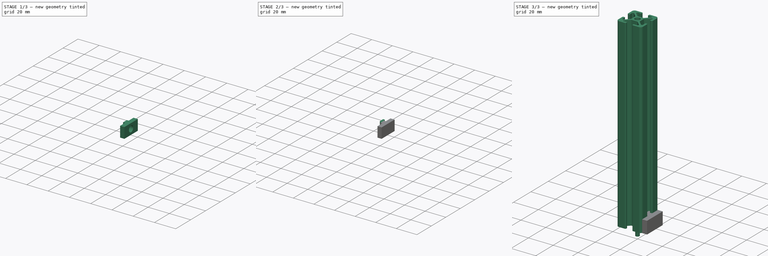
[diagram: build sequence overview — one tinted view per stage of 3, left to right]
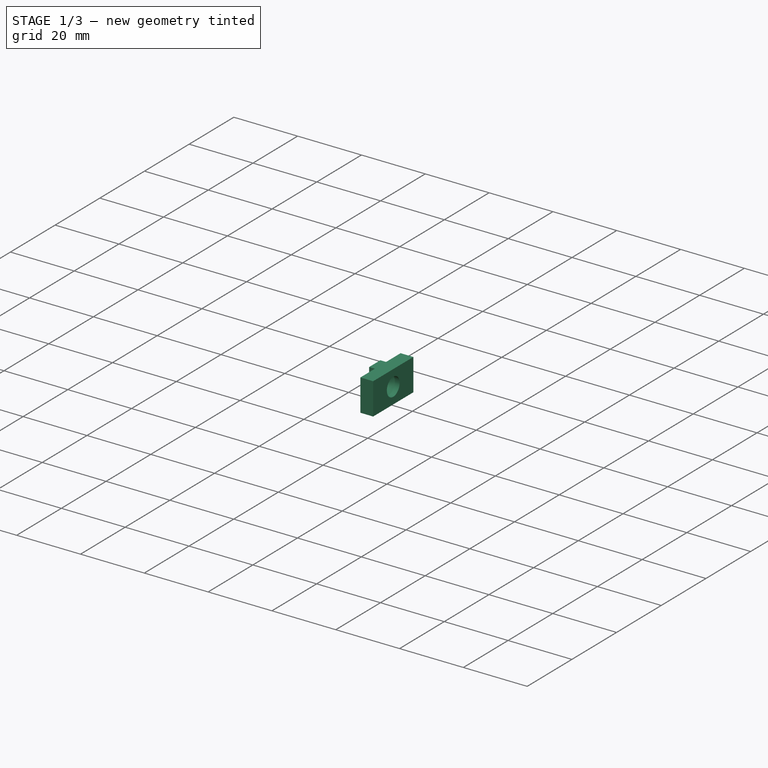
[diagram: stage 1 of 3 — iso view after this stage's code; geometry added in this stage tinted green]
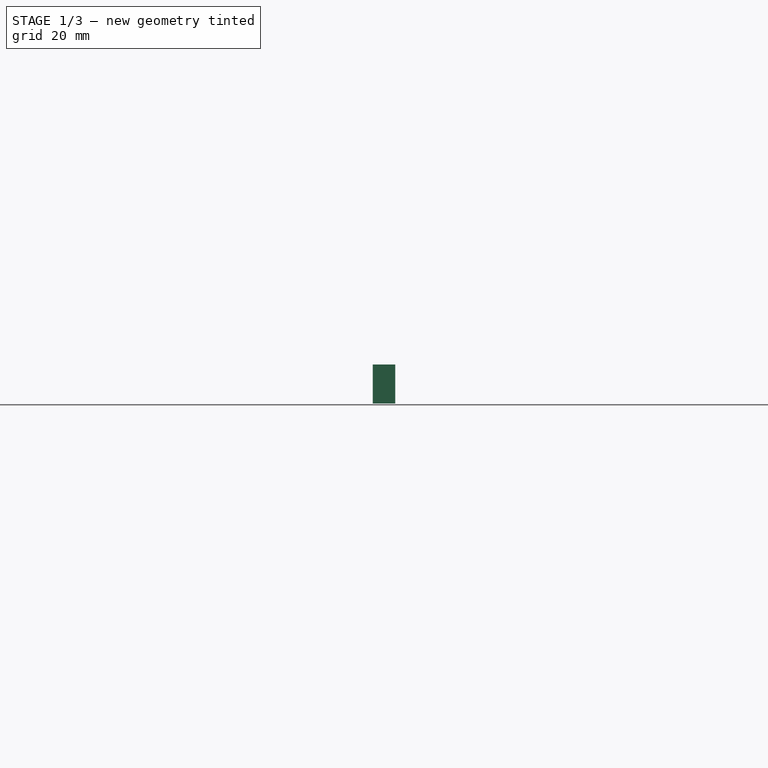
[diagram: stage 1 of 3 — front view after this stage's code; geometry added in this stage tinted green]
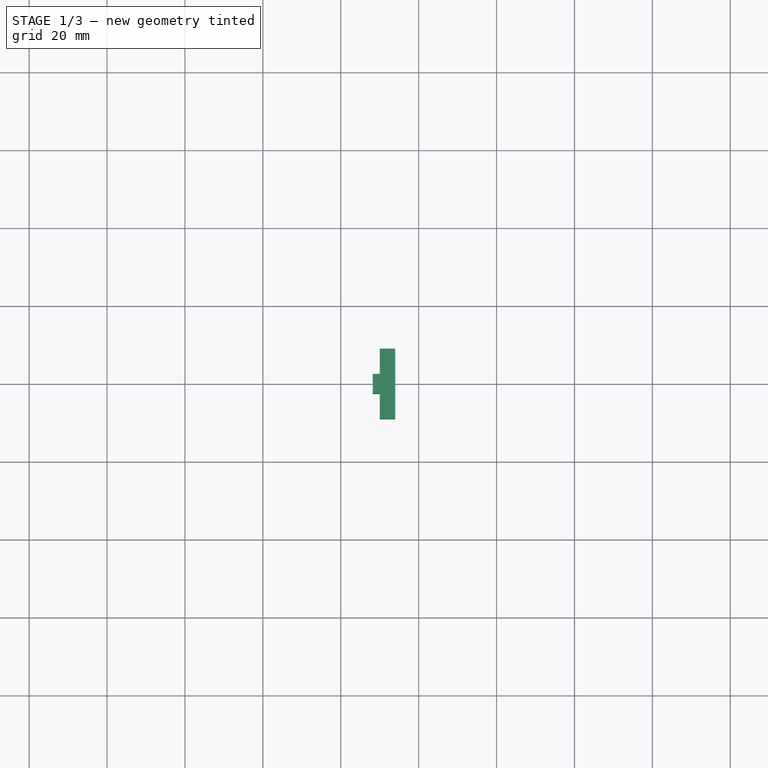
[diagram: stage 1 of 3 — top view after this stage's code; geometry added in this stage tinted green]
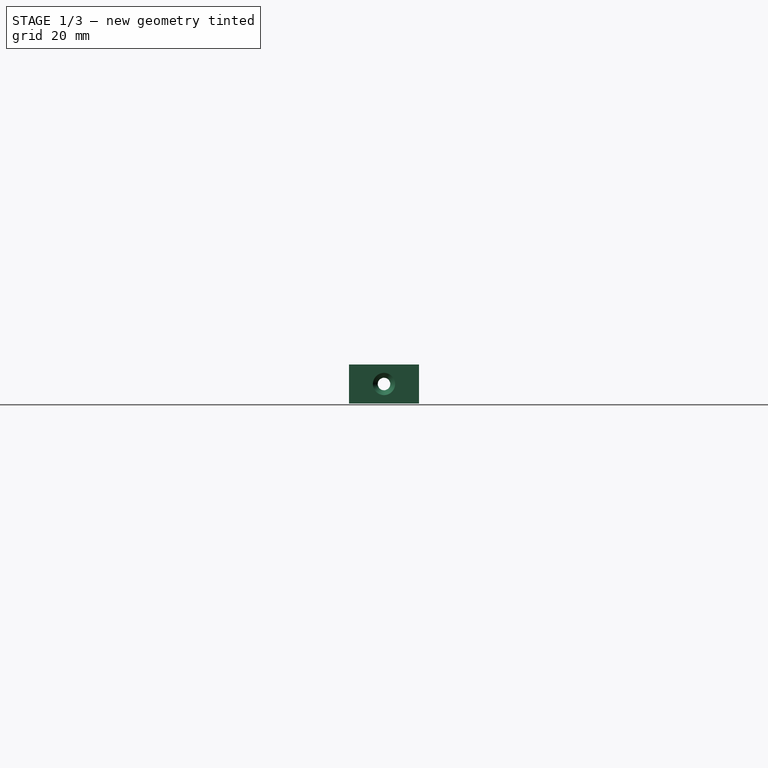
[diagram: stage 1 of 3 — right view after this stage's code; geometry added in this stage tinted green]
FCSTD DOCUMENT  (FreeCAD 0.18R)
Label: ISP5-Clamps
License: CreativeCommons Attribution
LicenseURL: http://creativecommons.org/licenses/by/4.0/
objects: Sketcher::SketchObject×5, PartDesign::Body×4, PartDesign::Pad×3, PartDesign::Revolution×1, PartDesign::Groove×1
note: 19 computed .brp shape members not serialized (recipe doc carries the construction recipe); baked Part::Feature solids carry a one-line shape summary decoded from their .brp

FEATURE [PartDesign::Body] Body008  label="ClampFix"
  Group = -> [Sketch012,Pad006]
  Origin = -> Origin017
  Tip = -> Pad006
FEATURE [Sketcher::SketchObject] Sketch013  label="ScrewFix-Profile"
  MapMode = 5
  Support = -> [XY_Plane019]
  sketch-geometry (8):
    g0: LineSegment StartX=14 StartY=9 StartZ=0 EndX=14 EndY=-9 EndZ=0
    g1: LineSegment StartX=14 StartY=-9 StartZ=0 EndX=10 EndY=-9 EndZ=0
    g2: LineSegment StartX=10 StartY=-9 StartZ=0 EndX=10 EndY=-2.5 EndZ=0
    g3: LineSegment StartX=10 StartY=-2.5 StartZ=0 EndX=8.2 EndY=-2.5 EndZ=0
    g4: LineSegment StartX=8.2 StartY=-2.5 StartZ=0 EndX=8.2 EndY=2.5 EndZ=0
    g5: LineSegment StartX=8.2 StartY=2.5 StartZ=0 EndX=10 EndY=2.5 EndZ=0
    g6: LineSegment StartX=10 StartY=2.5 StartZ=0 EndX=10 EndY=9 EndZ=0
    g7: LineSegment StartX=10 StartY=9 StartZ=0 EndX=14 EndY=9 EndZ=0
  constraints (22):
    c: Coincident(g0,g1)
    c: Coincident(g1,g2)
    c: Coincident(g2,g3)
    c: Coincident(g3,g4)
    c: Coincident(g5,g6)
    c: Coincident(g0,g7)
    c: Coincident(g6,g7)
    c: Horizontal(g5)
    c: Horizontal(g3)
    c: Horizontal(g7)
    c: Horizontal(g1)
    c: Vertical(g2)
    c: Vertical(g0)
    c: Vertical(g6)
    c: DistanceY(g4,g4) = 5
    c: DistanceX(g-1,g6) = 10
    c: DistanceX(g7,g7) = 4
    c: Symmetric(g1,g6,g-1)
    c: DistanceY(g0,g0) = 18
    c: Coincident(g4,g5)
    c: Symmetric(g3,g4,g-1)
    c: DistanceX(g5,g5) = 1.8
FEATURE [PartDesign::Pad] Pad007
  Length = 10
  Length2 = 100
  Profile = -> Sketch013
  Type = 0
FEATURE [Sketcher::SketchObject] Sketch014  label="DIN912-M3x8-3DP-Hole-Profile"
  Placement = pos=(12,0,5) rot=(0,0,-1;1.5708rad)
  Support = -> [Pad007]
  sketch-geometry (6):
    g0: LineSegment StartX=0 StartY=3 StartZ=0 EndX=2.85 EndY=3 EndZ=0
    g1: LineSegment StartX=2.85 StartY=3 StartZ=0 EndX=2.85 EndY=0.5 EndZ=0
    g2: LineSegment StartX=2.85 StartY=0.5 StartZ=0 EndX=1.6 EndY=-0.75 EndZ=0
    g3: LineSegment StartX=1.6 StartY=-0.75 StartZ=0 EndX=1.6 EndY=-10 EndZ=0
    g4: LineSegment StartX=1.6 StartY=-10 StartZ=0 EndX=0 EndY=-10 EndZ=0
    g5: LineSegment StartX=0 StartY=-10 StartZ=0 EndX=0 EndY=3 EndZ=0
  constraints (18):
    c: Coincident(g0,g1)
    c: Coincident(g1,g2)
    c: Coincident(g2,g3)
    c: Coincident(g3,g4)
    c: Coincident(g4,g5)
    c: Coincident(g0,g5)
    c: Vertical(g5)
    c: Vertical(g1)
    c: Vertical(g3)
    c: Angle(g-1,g2) = 0.785398
    c: Horizontal(g4)
    c: DistanceX(g4,g4) = 1.6
    c: PointOnObject(g-1,g5)
    c: DistanceY(g-1,g0) = 3
    c: Horizontal(g0)
    c: DistanceY(g1,g1) = 2.5
    c: DistanceX(g0,g0) = 2.85
    c: DistanceY(g4,g-1) = 10
FEATURE [PartDesign::Groove] Groove
  Angle = 360
  Axis = (1,2e-16,0)
  Base = (12,0,5)
  BaseFeature = -> Pad007
  Profile = -> Sketch014
  ReferenceAxis = -> Sketch014 [V_Axis]
FEATURE [PartDesign::Body] Body010  label="ScrewFix"
  Group = -> [Sketch013,Pad007,Sketch014,Groove]
  Origin = -> Origin019
  Tip = -> Groove
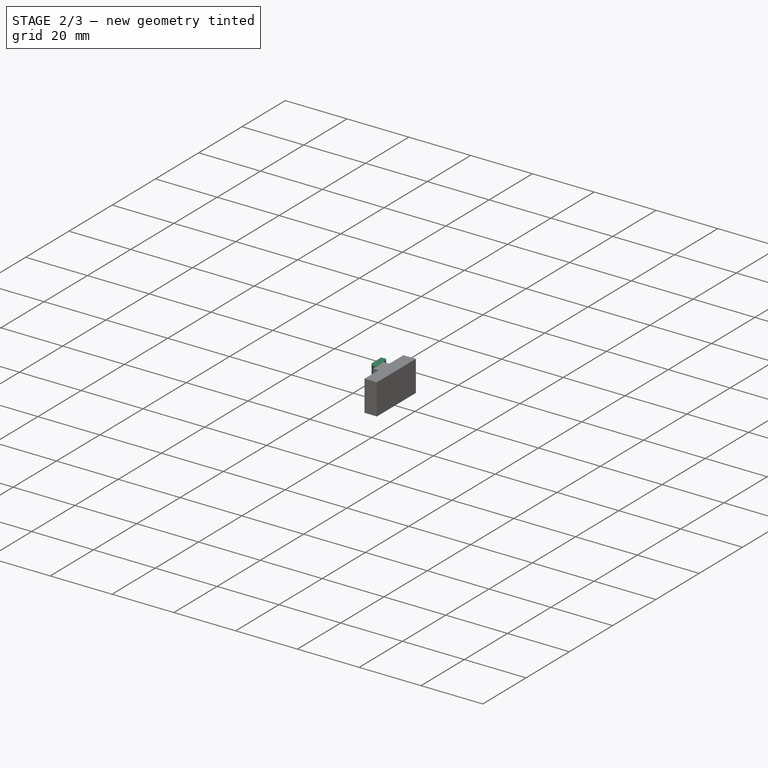
[diagram: stage 2 of 3 — iso view after this stage's code; geometry added in this stage tinted green]
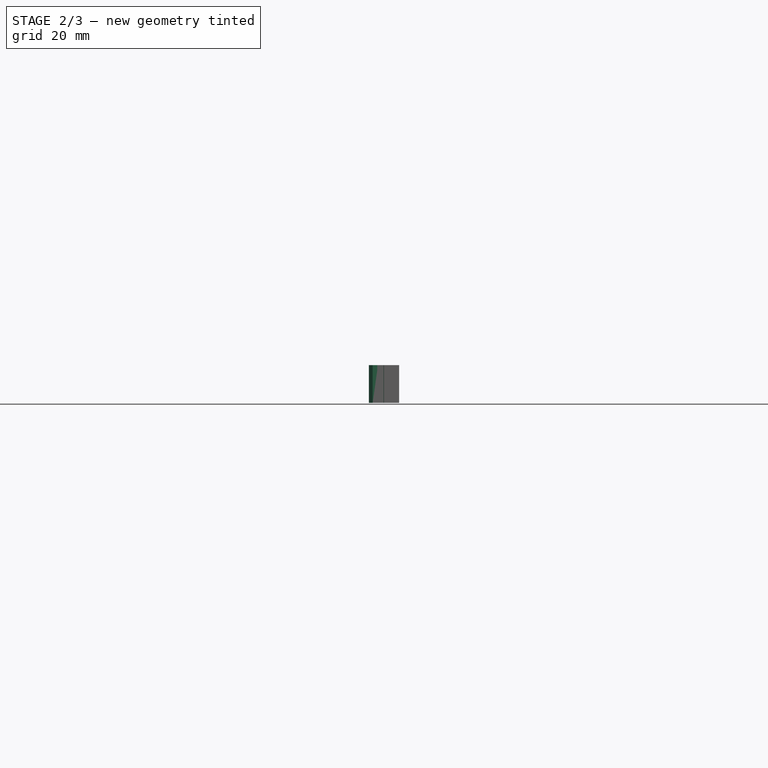
[diagram: stage 2 of 3 — front view after this stage's code; geometry added in this stage tinted green]
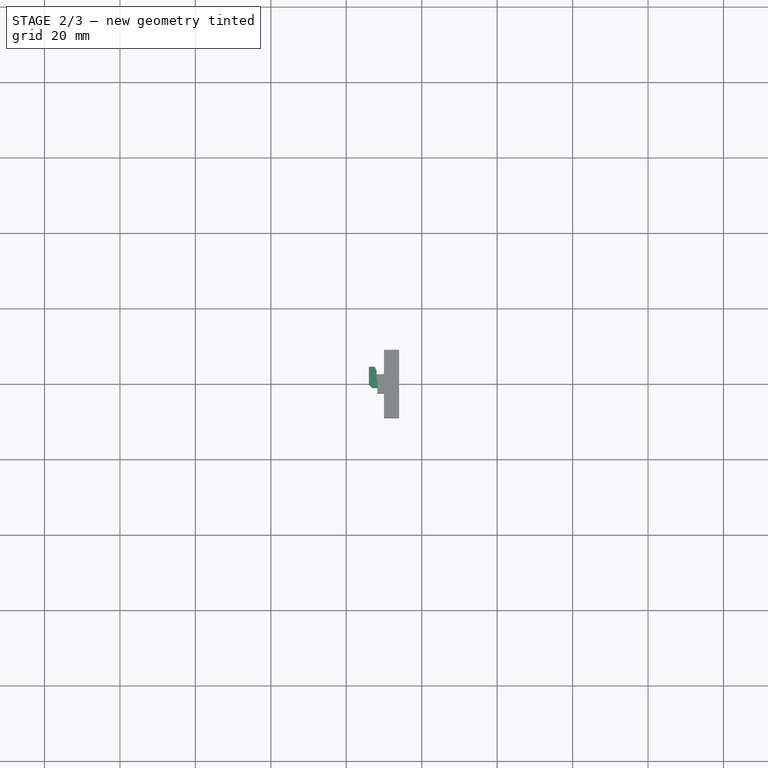
[diagram: stage 2 of 3 — top view after this stage's code; geometry added in this stage tinted green]
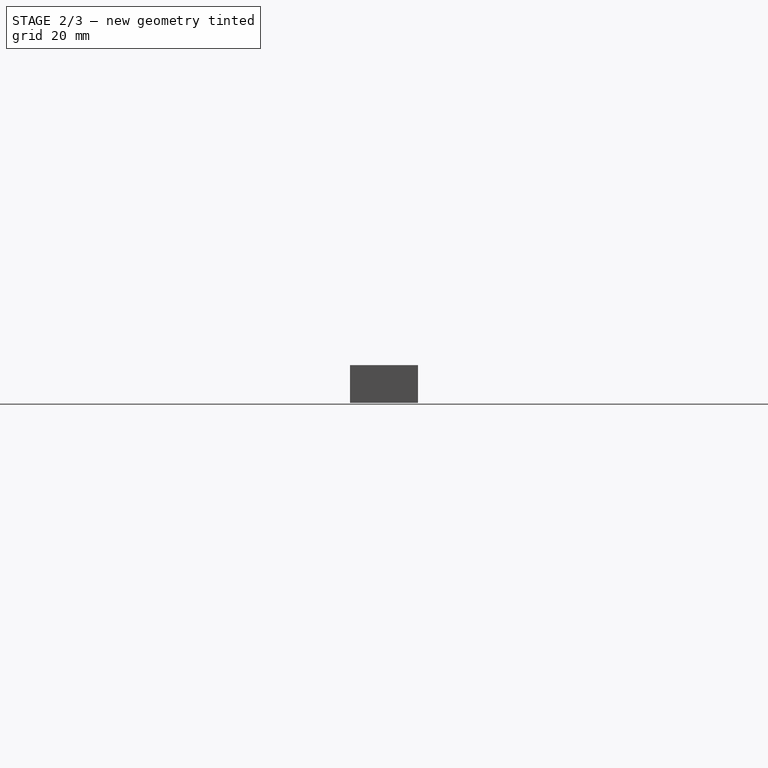
[diagram: stage 2 of 3 — right view after this stage's code; geometry added in this stage tinted green]
FEATURE [PartDesign::Body] Body  label="ISP5-L20"
  Group = -> [CopySketch029,Pad]
  Origin = -> Origin
  Tip = -> Pad
FEATURE [Sketcher::SketchObject] Sketch012  label="ClampFix-Profile"
  MapMode = 5
  Support = -> [XY_Plane017]
  sketch-geometry (14):
    g0: LineSegment StartX=14 StartY=9 StartZ=0 EndX=14 EndY=-9 EndZ=0
    g1: LineSegment StartX=14 StartY=-9 StartZ=0 EndX=10 EndY=-9 EndZ=0
    g2: LineSegment StartX=10 StartY=-9 StartZ=0 EndX=10 EndY=-2.6 EndZ=0
    g3: LineSegment StartX=8.4 StartY=-1 StartZ=0 EndX=7 EndY=-1 EndZ=0
    g4: LineSegment StartX=6 StartY=4e-16 StartZ=0 EndX=6 EndY=4.5 EndZ=0
    g5: LineSegment StartX=6 StartY=4.5 StartZ=0 EndX=7.53369 EndY=4.5 EndZ=0
    g6: LineSegment StartX=8 StartY=3.5 StartZ=0 EndX=8 EndY=2.5 EndZ=0
    g7: LineSegment StartX=10 StartY=2.7 StartZ=0 EndX=10 EndY=9 EndZ=0
    g8: LineSegment StartX=10 StartY=9 StartZ=0 EndX=14 EndY=9 EndZ=0
    g9: LineSegment StartX=7.53369 StartY=4.5 StartZ=0 EndX=8 EndY=3.5 EndZ=0
    g10: LineSegment StartX=8.4 StartY=-1 StartZ=0 EndX=10 EndY=-2.6 EndZ=0
    g11: LineSegment StartX=6 StartY=4e-16 StartZ=0 EndX=7 EndY=-1 EndZ=0
    g12: LineSegment StartX=8 StartY=2.5 StartZ=0 EndX=9.65 EndY=2.5 EndZ=0
    g13: LineSegment StartX=9.65 StartY=2.5 StartZ=0 EndX=10 EndY=2.7 EndZ=0
  constraints (41):
    c: Coincident(g0,g1)
    c: Coincident(g1,g2)
    c: Coincident(g4,g5)
    c: Coincident(g0,g8)
    c: Coincident(g7,g8)
    c: Horizontal(g3)
    c: Horizontal(g5)
    c: Horizontal(g8)
    c: Horizontal(g1)
    c: Vertical(g2)
    c: Vertical(g0)
    c: Vertical(g7)
    c: Vertical(g6)
    c: Vertical(g4)
    c: DistanceX(g6,g7) = 2
    c: Coincident(g5,g9)
    c: Coincident(g9,g6)
    c: DistanceX(g-1,g7) = 10
    c: DistanceY(g6,g6) = 1
    c: DistanceY(g6,g5) = 1
    c: DistanceX(g8,g8) = 4
    c: Symmetric(g1,g7,g-1)
    c: DistanceY(g0,g0) = 18
    c: DistanceX(g4,g6) = 2
    c: Coincident(g2,g10)
    c: Coincident(g3,g10)
    c: Coincident(g3,g11)
    c: Coincident(g4,g11)
    c: Angle(g9,g-1) = 1.13446
    c: Angle(g-1,g10) = 2.35619
    c: Parallel(g11,g10)
    c: DistanceY(g2,g-1) = 2.6
    c: DistanceY(g3,g-1) = 1
    c: DistanceX(g4,g3) = 1
    c: Coincident(g7,g13)
    c: Coincident(g12,g13)
    c: Coincident(g6,g12)
    c: DistanceY(g7) = 2.7
    c: Horizontal(g12)
    c: DistanceY(g-1,g12) = 2.5
    c: DistanceX(g12,g7) = 0.35
FEATURE [PartDesign::Pad] Pad006
  Length = 10
  Length2 = 100
  Profile = -> Sketch012
  Type = 0
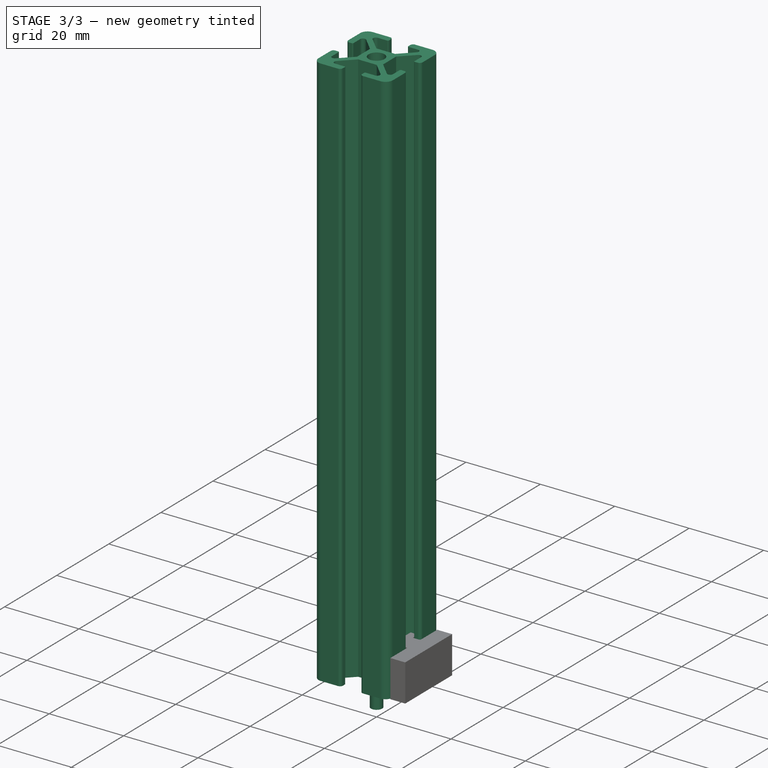
[diagram: stage 3 of 3 — iso view after this stage's code; geometry added in this stage tinted green]
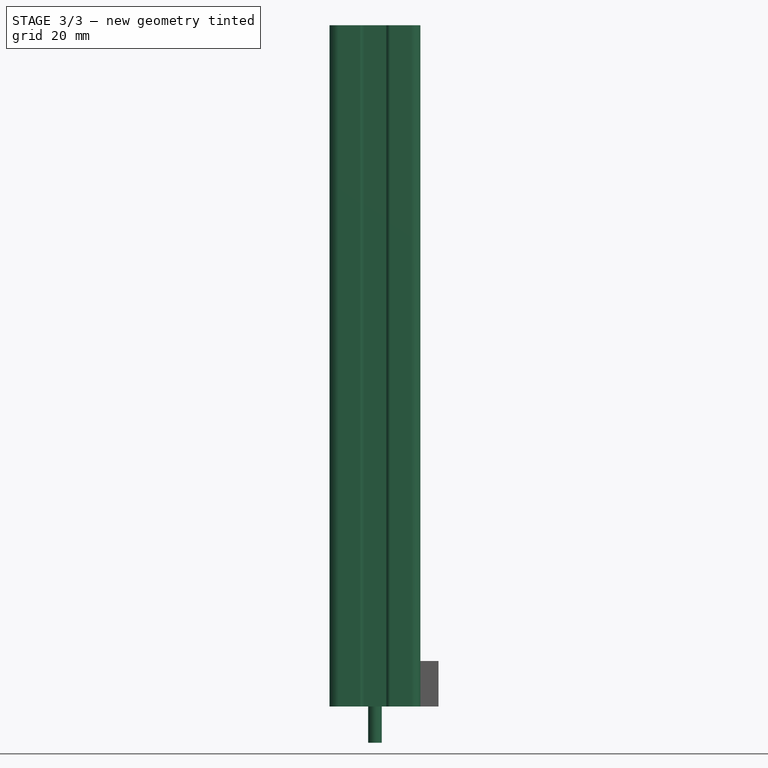
[diagram: stage 3 of 3 — front view after this stage's code; geometry added in this stage tinted green]
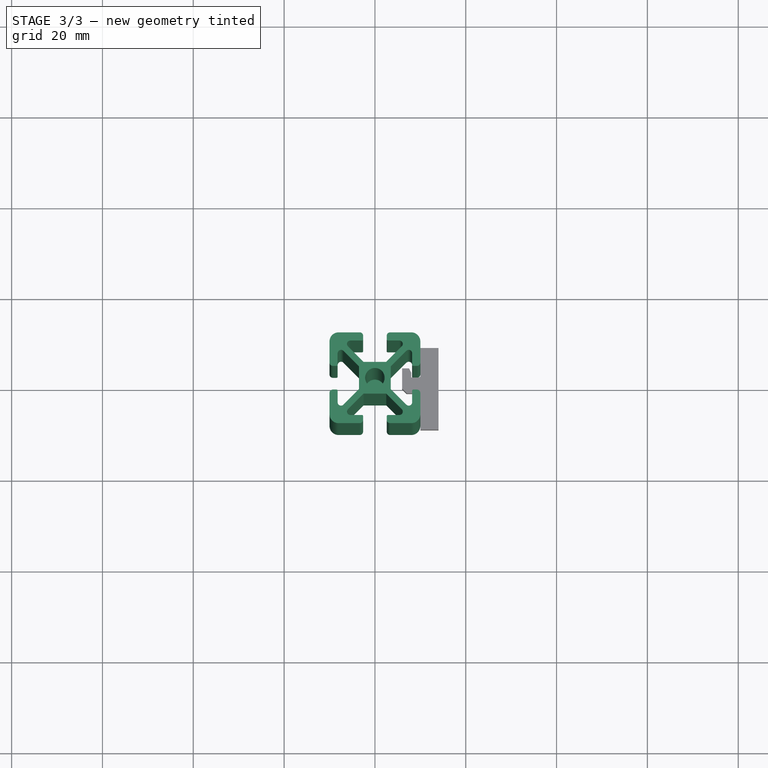
[diagram: stage 3 of 3 — top view after this stage's code; geometry added in this stage tinted green]
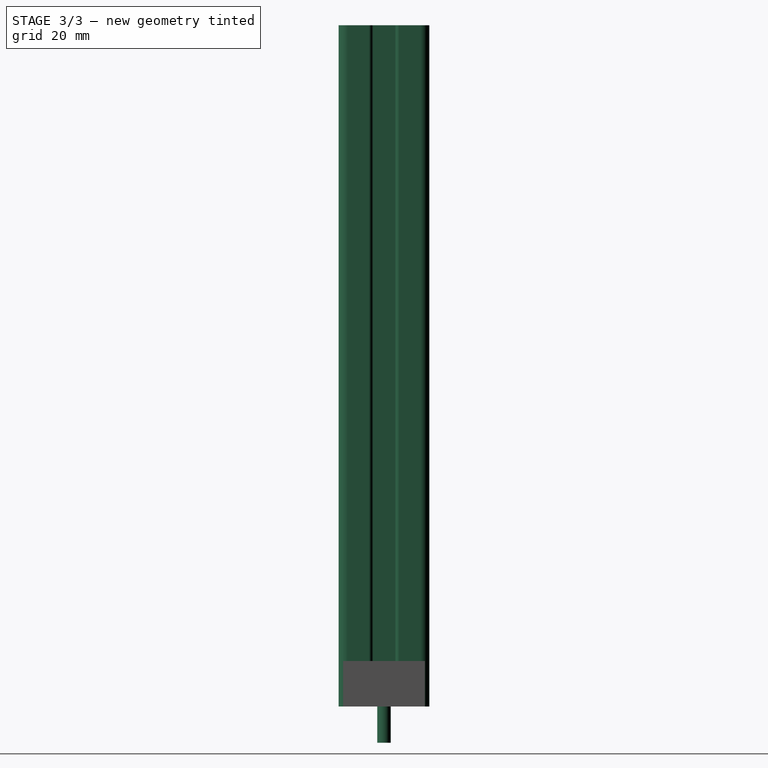
[diagram: stage 3 of 3 — right view after this stage's code; geometry added in this stage tinted green]
FEATURE [Sketcher::SketchObject] Sketch011  label="M3x8 Profile"
  MapMode = 5
  Placement = pos=(0,0,0) rot=(1,0,0;1.5708rad)
  Support = -> [XZ_Plane019]
  sketch-geometry (6):
    g0: LineSegment StartX=0 StartY=3 StartZ=0 EndX=0 EndY=-8 EndZ=0
    g1: LineSegment StartX=0 StartY=-8 StartZ=0 EndX=1.5 EndY=-8 EndZ=0
    g2: LineSegment StartX=1.5 StartY=-8 StartZ=0 EndX=1.5 EndY=0 EndZ=0
    g3: LineSegment StartX=1.5 StartY=0 StartZ=0 EndX=2.75 EndY=0 EndZ=0
    g4: LineSegment StartX=2.75 StartY=0 StartZ=0 EndX=2.75 EndY=3 EndZ=0
    g5: LineSegment StartX=2.75 StartY=3 StartZ=0 EndX=0 EndY=3 EndZ=0
  constraints (18):
    c: Coincident(g0,g1)
    c: Coincident(g1,g2)
    c: Coincident(g2,g3)
    c: Coincident(g3,g4)
    c: Coincident(g4,g5)
    c: Coincident(g0,g5)
    c: Horizontal(g5)
    c: Vertical(g0)
    c: PointOnObject(g0,g-2)
    c: Horizontal(g3)
    c: Vertical(g4)
    c: Vertical(g2)
    c: Horizontal(g1)
    c: DistanceY(g2,g2) = 8
    c: PointOnObject(g2,g-1)
    c: DistanceY(g4,g4) = 3
    c: DistanceX(g5,g5) = 2.75
    c: DistanceX(g1,g1) = 1.5
FEATURE [PartDesign::Revolution] Revolution002
  Angle = 360
  Axis = (0,-2e-16,1)
  Base = (0,0,0)
  Placement = pos=(0,0,0) rot=(1,0,0;1.5708rad)
  Profile = -> Sketch011
  ReferenceAxis = -> Sketch011 [V_Axis]
  Reversed = true
FEATURE [PartDesign::Body] Body005  label="DIN912-M3x8"
  Group = -> [Sketch011,Revolution002]
  Origin = -> Origin012
  Placement = pos=(12,0,5) rot=(0.57735,-0.57735,0.57735;4.18879rad)
  Tip = -> Revolution002
FEATURE [Sketcher::SketchObject] CopySketch029  label="ISP5-L20-Profile"
  MapMode = 5
  sketch-geometry (70):
    g0: LineSegment StartX=-2.5 StartY=3.5 StartZ=0 EndX=-5.91967 EndY=6.91967 EndZ=0
    g1: LineSegment StartX=-5.38934 StartY=8.2 StartZ=0 EndX=-2.85 EndY=8.2 EndZ=0
    g2: LineSegment StartX=-3.35 StartY=10 StartZ=0 EndX=-8 EndY=10 EndZ=0
    g3: LineSegment StartX=-10 StartY=8 StartZ=0 EndX=-10 EndY=3.35 EndZ=0
    g4: LineSegment StartX=-9.25 StartY=2.6 StartZ=0 EndX=-8.45 EndY=2.6 EndZ=0
    g5: LineSegment StartX=-8.2 StartY=2.85 StartZ=0 EndX=-8.2 EndY=5.38934 EndZ=0
    g6: LineSegment StartX=-6.91967 StartY=5.91967 StartZ=0 EndX=-3.5 EndY=2.5 EndZ=0
    g7: LineSegment StartX=-2.6 StartY=9.25 StartZ=0 EndX=-2.6 EndY=8.45 EndZ=0
    g8: ArcOfCircle CenterX=-8 CenterY=8 CenterZ=0 NormalX=0 NormalY=0 NormalZ=1 AngleXU=0 Radius=2 StartAngle=1.5708 EndAngle=3.14159
    g9: ArcOfCircle CenterX=-3.35 CenterY=9.25 CenterZ=0 NormalX=0 NormalY=0 NormalZ=1 AngleXU=0 Radius=0.75 StartAngle=6e-16 EndAngle=1.5708
    g10: ArcOfCircle CenterX=-9.25 CenterY=3.35 CenterZ=0 NormalX=0 NormalY=0 NormalZ=1 AngleXU=0 Radius=0.75 StartAngle=3.14159 EndAngle=4.71239
    g11: ArcOfCircle CenterX=-5.38934 CenterY=7.45 CenterZ=0 NormalX=0 NormalY=0 NormalZ=1 AngleXU=0 Radius=0.75 StartAngle=1.5708 EndAngle=3.92699
    g12: ArcOfCircle CenterX=-7.45 CenterY=5.38934 CenterZ=0 NormalX=0 NormalY=0 NormalZ=1 AngleXU=0 Radius=0.75 StartAngle=0.785398 EndAngle=3.14159
    g13: LineSegment [constr] StartX=-5.38934 StartY=7.45 StartZ=0 EndX=-7.45 EndY=5.38934 EndZ=0
    g14: ArcOfCircle CenterX=-2.85 CenterY=8.45 CenterZ=0 NormalX=0 NormalY=0 NormalZ=1 AngleXU=0 Radius=0.25 StartAngle=4.71239 EndAngle=6.28319
    g15: Circle CenterX=0 CenterY=0 CenterZ=0 NormalX=0 NormalY=0 NormalZ=1 AngleXU=0 Radius=2.15
    g16: LineSegment StartX=2.5 StartY=3.5 StartZ=0 EndX=5.91967 EndY=6.91967 EndZ=0
    g17: LineSegment StartX=3.5 StartY=-2.5 StartZ=0 EndX=6.91967 EndY=-5.91967 EndZ=0
    g18: LineSegment StartX=2.5 StartY=-3.5 StartZ=0 EndX=5.91967 EndY=-6.91967 EndZ=0
    g19: LineSegment StartX=-2.5 StartY=-3.5 StartZ=0 EndX=-5.91967 EndY=-6.91967 EndZ=0
    g20: LineSegment StartX=-3.5 StartY=-2.5 StartZ=0 EndX=-6.91967 EndY=-5.91967 EndZ=0
    g21: LineSegment StartX=3.5 StartY=2.5 StartZ=0 EndX=6.91967 EndY=5.91967 EndZ=0
    g22: ArcOfCircle CenterX=-7.45 CenterY=-5.38934 CenterZ=0 NormalX=0 NormalY=0 NormalZ=1 AngleXU=0 Radius=0.75 StartAngle=3.14159 EndAngle=5.49779
    g23: ArcOfCircle CenterX=-5.38934 CenterY=-7.45 CenterZ=0 NormalX=0 NormalY=0 NormalZ=1 AngleXU=0 Radius=0.75 StartAngle=2.35619 EndAngle=4.71239
    g24: ArcOfCircle CenterX=5.38934 CenterY=-7.45 CenterZ=0 NormalX=0 NormalY=0 NormalZ=1 AngleXU=0 Radius=0.75 StartAngle=4.71239 EndAngle=7.06858
    g25: ArcOfCircle CenterX=7.45 CenterY=-5.38934 CenterZ=0 NormalX=0 NormalY=0 NormalZ=1 AngleXU=0 Radius=0.75 StartAngle=3.92699 EndAngle=6.28319
    g26: ArcOfCircle CenterX=5.38934 CenterY=7.45 CenterZ=0 NormalX=0 NormalY=0 NormalZ=1 AngleXU=0 Radius=0.75 StartAngle=5.49779 EndAngle=7.85398
    g27: ArcOfCircle CenterX=7.45 CenterY=5.38934 CenterZ=0 NormalX=0 NormalY=0 NormalZ=1 AngleXU=0 Radius=0.75 StartAngle=6e-16 EndAngle=2.35619
    g28: LineSegment StartX=-5.38934 StartY=-8.2 StartZ=0 EndX=-2.85 EndY=-8.2 EndZ=0
    g29: LineSegment StartX=2.85 StartY=-8.2 StartZ=0 EndX=5.38934 EndY=-8.2 EndZ=0
    g30: LineSegment StartX=8.2 StartY=-5.38934 StartZ=0 EndX=8.2 EndY=-2.85 EndZ=0
    g31: LineSegment StartX=8.2 StartY=5.38934 StartZ=0 EndX=8.2 EndY=2.85 EndZ=0
    g32: LineSegment StartX=5.38934 StartY=8.2 StartZ=0 EndX=2.85 EndY=8.2 EndZ=0
    g33: LineSegment StartX=-8.2 StartY=-5.38934 StartZ=0 EndX=-8.2 EndY=-2.85 EndZ=0
    g34: ArcOfCircle CenterX=-8.45 CenterY=-2.85 CenterZ=0 NormalX=0 NormalY=0 NormalZ=1 AngleXU=0 Radius=0.25 StartAngle=7e-16 EndAngle=1.5708
    g35: ArcOfCircle CenterX=-2.85 CenterY=-8.45 CenterZ=0 NormalX=0 NormalY=0 NormalZ=1 AngleXU=0 Radius=0.25 StartAngle=1e-15 EndAngle=1.5708
    g36: ArcOfCircle CenterX=2.85 CenterY=-8.45 CenterZ=0 NormalX=0 NormalY=0 NormalZ=1 AngleXU=0 Radius=0.25 StartAngle=1.5708 EndAngle=3.14159
    g37: ArcOfCircle CenterX=8.45 CenterY=-2.85 CenterZ=0 NormalX=0 NormalY=0 NormalZ=1 AngleXU=0 Radius=0.25 StartAngle=1.5708 EndAngle=3.14159
    g38: LineSegment StartX=2.6 StartY=9.25 StartZ=0 EndX=2.6 EndY=8.45 EndZ=0
    g39: LineSegment StartX=8.45 StartY=2.6 StartZ=0 EndX=9.25 EndY=2.6 EndZ=0
    g40: LineSegment StartX=8.45 StartY=-2.6 StartZ=0 EndX=9.25 EndY=-2.6 EndZ=0
    g41: LineSegment StartX=-8.45 StartY=-2.6 StartZ=0 EndX=-9.25 EndY=-2.6 EndZ=0
    g42: LineSegment StartX=-2.6 StartY=-8.45 StartZ=0 EndX=-2.6 EndY=-9.25 EndZ=0
    g43: LineSegment StartX=2.6 StartY=-8.45 StartZ=0 EndX=2.6 EndY=-9.25 EndZ=0
    g44: ArcOfCircle CenterX=8.45 CenterY=2.85 CenterZ=0 NormalX=0 NormalY=0 NormalZ=1 AngleXU=0 Radius=0.25 StartAngle=3.14159 EndAngle=4.71239
    g45: LineSegment StartX=3.35 StartY=10 StartZ=0 EndX=8 EndY=10 EndZ=0
    g46: ArcOfCircle CenterX=8 CenterY=8 CenterZ=0 NormalX=0 NormalY=0 NormalZ=1 AngleXU=0 Radius=2 StartAngle=2e-16 EndAngle=1.5708
    g47: LineSegment StartX=10 StartY=8 StartZ=0 EndX=10 EndY=3.35 EndZ=0
    g48: ArcOfCircle CenterX=9.25 CenterY=3.35 CenterZ=0 NormalX=0 NormalY=0 NormalZ=1 AngleXU=0 Radius=0.75 StartAngle=4.71239 EndAngle=6.28319
    g49: LineSegment StartX=3.35 StartY=-10 StartZ=0 EndX=8 EndY=-10 EndZ=0
    g50: ArcOfCircle CenterX=8 CenterY=-8 CenterZ=0 NormalX=0 NormalY=0 NormalZ=1 AngleXU=0 Radius=2 StartAngle=4.71239 EndAngle=6.28319
    g51: LineSegment StartX=10 StartY=-8 StartZ=0 EndX=10 EndY=-3.35 EndZ=0
    g52: ArcOfCircle CenterX=9.25 CenterY=-3.35 CenterZ=0 NormalX=0 NormalY=0 NormalZ=1 AngleXU=0 Radius=0.75 StartAngle=1e-16 EndAngle=1.5708
    g53: LineSegment StartX=-3.35 StartY=-10 StartZ=0 EndX=-8 EndY=-10 EndZ=0
    g54: LineSegment StartX=-10 StartY=-8 StartZ=0 EndX=-10 EndY=-3.35 EndZ=0
    g55: ArcOfCircle CenterX=-9.25 CenterY=-3.35 CenterZ=0 NormalX=0 NormalY=0 NormalZ=1 AngleXU=0 Radius=0.75 StartAngle=1.5708 EndAngle=3.14159
    g56: ArcOfCircle CenterX=-3.35 CenterY=-9.25 CenterZ=0 NormalX=0 NormalY=0 NormalZ=1 AngleXU=0 Radius=0.75 StartAngle=4.71239 EndAngle=6.28319
    g57: ArcOfCircle CenterX=3.35 CenterY=-9.25 CenterZ=0 NormalX=0 NormalY=0 NormalZ=1 AngleXU=0 Radius=0.75 StartAngle=3.14159 EndAngle=4.71239
    g58: ArcOfCircle CenterX=3.35 CenterY=9.25 CenterZ=0 NormalX=0 NormalY=0 NormalZ=1 AngleXU=0 Radius=0.75 StartAngle=1.5708 EndAngle=3.14159
    g59: ArcOfCircle CenterX=-8 CenterY=-8 CenterZ=0 NormalX=0 NormalY=0 NormalZ=1 AngleXU=0 Radius=2 StartAngle=3.14159 EndAngle=4.71239
    g60: ArcOfCircle CenterX=-8.45 CenterY=2.85 CenterZ=0 NormalX=0 NormalY=0 NormalZ=1 AngleXU=0 Radius=0.25 StartAngle=4.71239 EndAngle=6.28319
    g61: ArcOfCircle CenterX=2.85 CenterY=8.45 CenterZ=0 NormalX=0 NormalY=0 NormalZ=1 AngleXU=0 Radius=0.25 StartAngle=3.14159 EndAngle=4.71239
    g62: LineSegment StartX=0 StartY=3.5 StartZ=0 EndX=2.5 EndY=3.5 EndZ=0
    g63: LineSegment StartX=0 StartY=3.5 StartZ=0 EndX=-2.5 EndY=3.5 EndZ=0
    g64: LineSegment StartX=-3.5 StartY=2.5 StartZ=0 EndX=-3.5 EndY=0 EndZ=0
    g65: LineSegment StartX=-3.5 StartY=0 StartZ=0 EndX=-3.5 EndY=-2.5 EndZ=0
    g66: LineSegment StartX=-2.5 StartY=-3.5 StartZ=0 EndX=0 EndY=-3.5 EndZ=0
    g67: LineSegment StartX=0 StartY=-3.5 StartZ=0 EndX=2.5 EndY=-3.5 EndZ=0
    g68: LineSegment StartX=3.5 StartY=-2.5 StartZ=0 EndX=3.5 EndY=0 EndZ=0
    g69: LineSegment StartX=3.5 StartY=0 StartZ=0 EndX=3.5 EndY=2.5 EndZ=0
  constraints (173):
    c: Vertical(g7)
    c: Horizontal(g1)
    c: Vertical(g5)
    c: Horizontal(g4)
    c: Coincident(g2,g9)
    c: Coincident(g9,g7)
    c: Radius(g9) = 0.75
    c: DistanceY(g1,g2) = 1.8
    c: Coincident(g3,g10)
    c: Coincident(g10,g4)
    c: Radius(g10) = 0.75
    c: Horizontal(g9,g7)
    c: Vertical(g2,g9)
    c: Coincident(g0,g11)
    c: Coincident(g11,g1)
    c: Vertical(g1,g11)
    c: Radius(g11) = 0.75
    c: Coincident(g12,g6)
    c: Coincident(g12,g5)
    c: Equal(g11,g12)
    c: Horizontal(g5,g12)
    c: Coincident(g12,g13)
    c: Coincident(g11,g13)
    c: PointOnObject(g0,g13)
    c: PointOnObject(g6,g13)
    c: Horizontal(g3,g10)
    c: Vertical(g10,g4)
    c: Horizontal(g2)
    c: Vertical(g3)
    c: Parallel(g6,g0)
    c: Tangent(g2,g8) = -1.5708
    c: Tangent(g3,g8) = -1.5708
    c: Radius(g8) = 2
    c: Perpendicular(g13,g6)
    c: Coincident(g7,g14)
    c: Coincident(g1,g14)
    c: Vertical(g14,g1)
    c: Horizontal(g14,g7)
    c: Radius(g14) = 0.25
    c: DistanceX(g3,g5) = 1.8
    c: Coincident(g15,g-1)
    c: Radius(g15) = 2.15
    c: DistanceX(g0,g16) = 5
    c: Symmetric(g16,g0,g-2)
    c: Symmetric(g21,g6,g-2)
    c: Equal(g16,g21)
    c: Parallel(g20,g19)
    c: Parallel(g18,g17)
    c: Symmetric(g6,g20,g-1)
    c: Symmetric(g0,g19,g-1)
    c: Tangent(g16,g26) = -1.5708
    c: Tangent(g21,g27) = 1.5708
    c: Tangent(g17,g25) = -1.5708
    c: Tangent(g18,g24) = 1.5708
    c: Tangent(g19,g23) = -1.5708
    c: Tangent(g20,g22) = 1.5708
    c: Horizontal(g28)
    c: Tangent(g26,g32) = -1.5708
    c: Tangent(g27,g31) = 1.5708
    c: Tangent(g25,g30) = -1.5708
    c: Tangent(g24,g29) = -1.5708
    c: Tangent(g23,g28) = -1.5708
    c: Tangent(g22,g33) = 1.5708
    c: Tangent(g30,g37) = 1.5708
    c: Tangent(g36,g29) = 1.5708
    c: Tangent(g28,g35) = 1.5708
    c: Tangent(g34,g33) = -1.5708
    c: Symmetric(g0,g16,g-2)
    c: Symmetric(g21,g17,g-1)
    c: Symmetric(g18,g19,g-2)
    c: Symmetric(g6,g20,g-1)
    c: Symmetric(g23,g1,g-1)
    c: Symmetric(g24,g26,g-1)
    c: DistanceX(g6,g21) = 7
    c: Vertical(g42)
    c: Vertical(g43)
    c: Tangent(g44,g31) = -1.5708
    c: Tangent(g44,g39) = -1.5708
    c: Tangent(g37,g40) = 1.5708
    c: Tangent(g36,g43) = -1.5708
    c: Tangent(g35,g42) = 1.5708
    c: Tangent(g41,g34) = -1.5708
    c: Symmetric(g5,g27,g-2)
    c: Symmetric(g22,g25,g-2)
    c: Vertical(g7,g35)
    c: Symmetric(g4,g41,g-1)
    c: Symmetric(g7,g38,g-2)
    c: Symmetric(g39,g40,g-1)
    c: Tangent(g45,g46) = 1.5708
    c: Tangent(g46,g47) = 1.5708
    c: Tangent(g47,g48) = 1.5708
    c: Tangent(g49,g50) = -1.5708
    c: Tangent(g50,g51) = -1.5708
    c: Tangent(g51,g52) = -1.5708
    c: Tangent(g54,g55) = 1.5708
    c: Tangent(g55,g41) = -1.5708
    c: Tangent(g40,g52) = 1.5708
    c: Tangent(g48,g39) = -1.5708
    c: Vertical(g51)
    c: Vertical(g47)
    c: Horizontal(g45)
    c: Horizontal(g49)
    c: Horizontal(g53)
    c: Tangent(g45,g58) = 1.5708
    c: Tangent(g38,g58) = -1.5708
    c: Tangent(g43,g57) = -1.5708
    c: Tangent(g49,g57) = -1.5708
    c: Tangent(g53,g56) = 1.5708
    c: Tangent(g42,g56) = 1.5708
    c: DistanceX(g3,g46) = 20
    c: Tangent(g54,g59) = 1.5708
    c: Tangent(g53,g59) = 1.5708
    c: DistanceY(g53,g2) = 20
    c: Symmetric(g54,g51,g-2)
    c: Vertical(g51,g47)
    c: Horizontal(g39)
    c: Horizontal(g40)
    c: Vertical(g54)
    c: DistanceX(g7,g38) = 5.2
    c: DistanceY(g41,g4) = 5.2
    c: DistanceY(g40,g39) = 5.2
    c: Horizontal(g2,g45)
    c: Vertical(g3,g54)
    c: Horizontal(g53,g49)
    c: Vertical(g38)
    c: Horizontal(g32)
    c: Vertical(g30)
    c: Vertical(g31)
    c: Vertical(g33)
    c: Vertical(g5,g33)
    c: Horizontal(g41)
    c: Radius(g46) = 2
    c: Radius(g50) = 2
    c: Radius(g59) = 2
    c: Radius(g56) = 0.75
    c: Symmetric(g42,g43,g-2)
    c: Radius(g35) = 0.25
    c: Radius(g44) = 0.25
    c: Radius(g34) = 0.25
    c: Radius(g37) = 0.25
    c: Tangent(g5,g60) = -1.5708
    c: Tangent(g4,g60) = -1.5708
    c: Radius(g60) = 0.25
    c: Tangent(g61,g38) = -1.5708
    c: Tangent(g32,g61) = 1.5708
    c: Radius(g61) = 0.25
    c: Radius(g36) = 0.25
    c: Horizontal(g1,g32)
    c: Coincident(g62,g63)
    c: Horizontal(g63)
    c: PointOnObject(g62,g-2)
    c: Coincident(g16,g62)
    c: Coincident(g0,g63)
    c: Coincident(g68,g69)
    c: Coincident(g66,g67)
    c: Coincident(g64,g65)
    c: Coincident(g20,g65)
    c: Coincident(g19,g66)
    c: Coincident(g18,g67)
    c: Coincident(g17,g68)
    c: Coincident(g21,g69)
    c: Coincident(g6,g64)
    c: PointOnObject(g64,g-1)
    c: PointOnObject(g68,g-1)
    c: PointOnObject(g66,g-2)
    c: Vertical(g64)
    c: Horizontal(g66)
    c: Horizontal(g67)
    c: Vertical(g69)
    c: Vertical(g68)
    c: DistanceY(g20,g6) = 5
    c: DistanceY(g19,g0) = 7
    c: Vertical(g16,g18)
FEATURE [PartDesign::Pad] Pad
  Length = 150
  Length2 = 100
  Profile = -> CopySketch029
  Type = 0
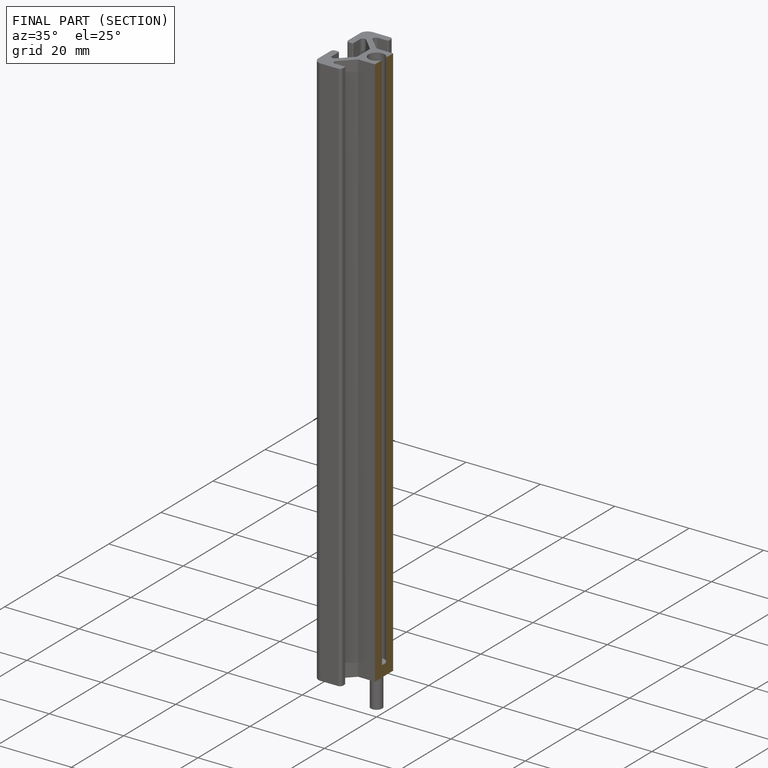
[diagram: finished part — half-section view (interior)]
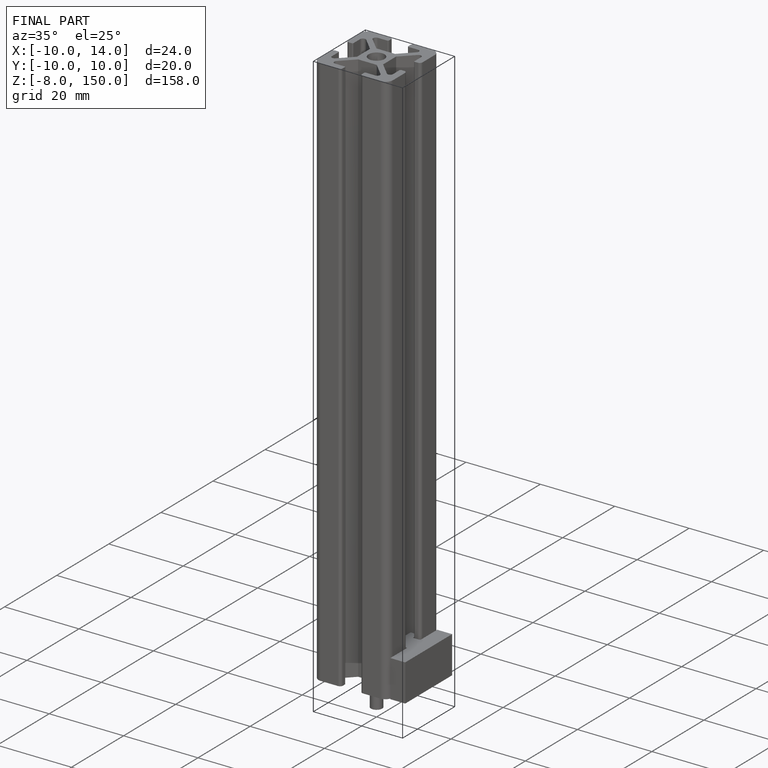
[diagram: finished part — iso view with bounding-box wireframe]
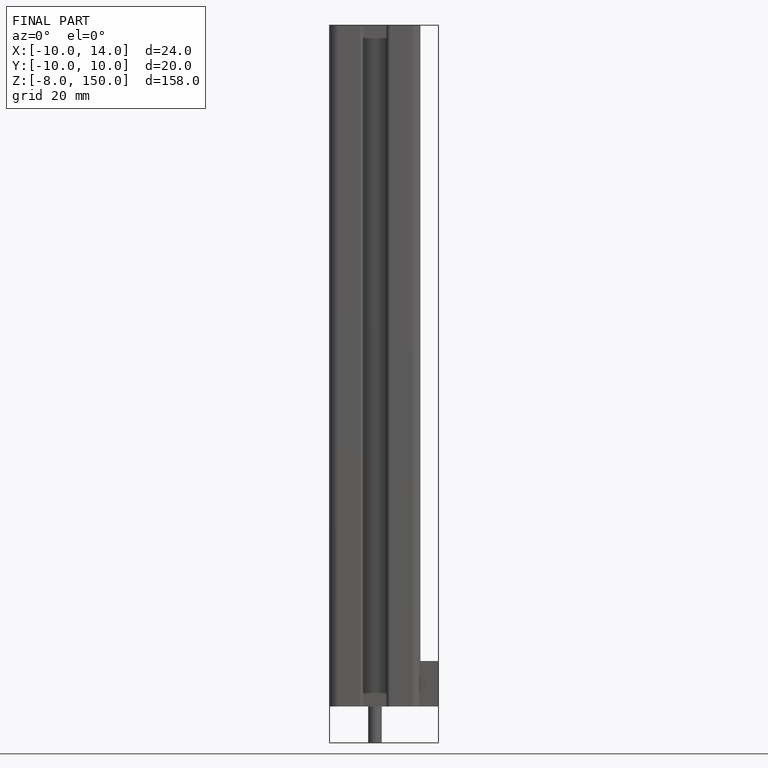
[diagram: finished part — front view with bounding-box wireframe]
